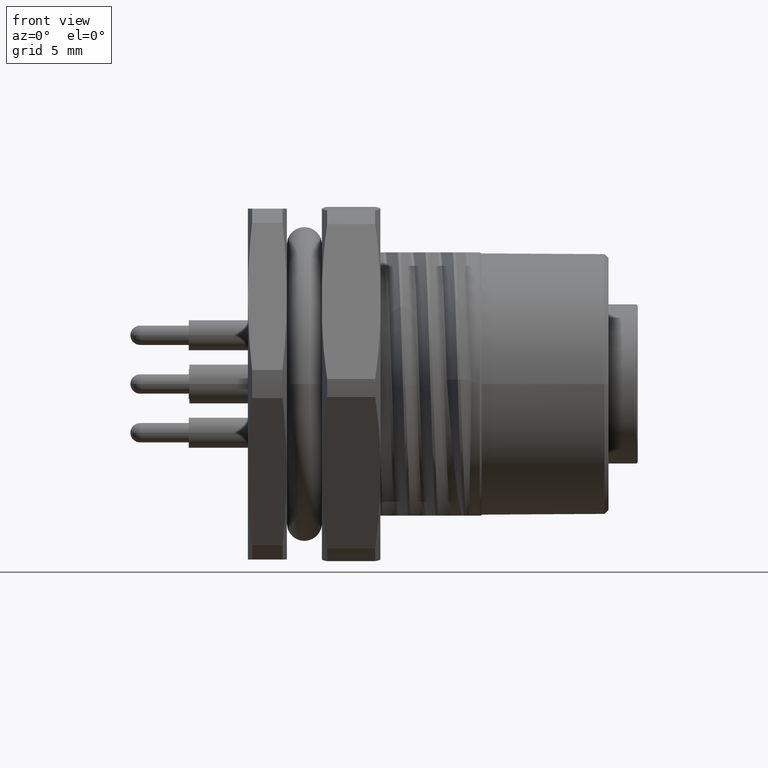
[diagram: clean part render]
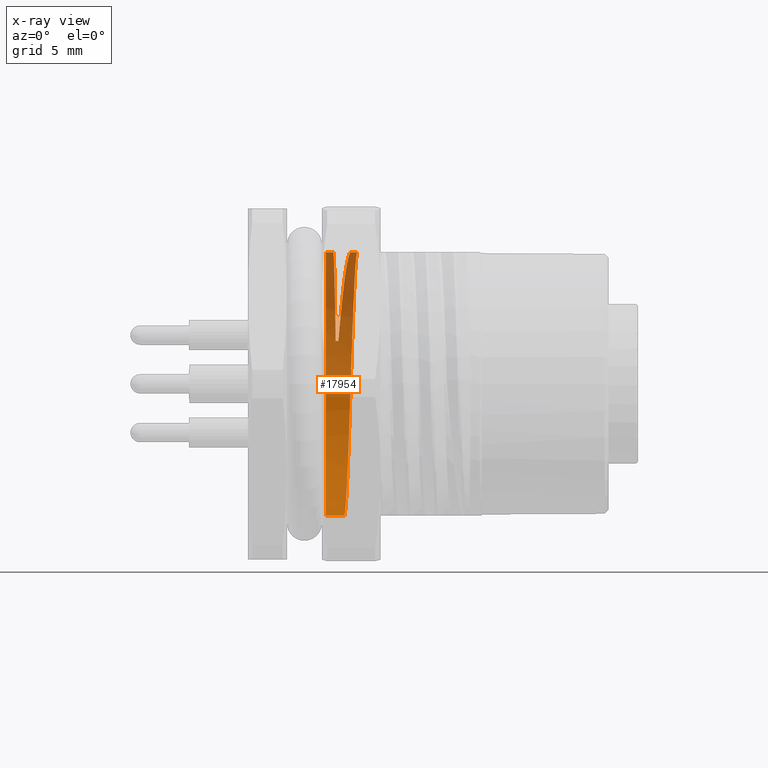
[diagram: x-ray — body ghosted, one internal face saturated and labeled with its STEP entity id]
A machine part, front view, then the same camera in x-ray: the body is ghosted and one INTERNAL B-rep face — a face not visible from any outside direction — is saturated and labeled: STEP entity #17954.
In plain terms, the highlighted cylindrical surface (partial cylindrical patch) has radius 6.82 mm, axis along (1, 0, 0).
Its self-contained STEP definition (entity closure, byte-faithful):
#1657=DIRECTION('',(9.999999637706E-1,-4.323189271071E-5,-2.656872474351E-4));
#1658=VECTOR('',#1657,1.542616802964E-2);
#1659=CARTESIAN_POINT('',(7.874015748036E-2,3.837118638635E-2,
2.657480314961E-1));
#1660=LINE('',#1659,#1658);
#1661=DIRECTION('',(9.999999606721E-1,7.051710435468E-5,2.714464876743E-4));
#1662=VECTOR('',#1661,1.366772633188E-2);
#1663=CARTESIAN_POINT('',(1.279060387132E-1,3.837017859414E-2,
2.657439028105E-1));
#1664=LINE('',#1663,#1662);
#5572=DIRECTION('',(9.999999999283E-1,-3.021139811967E-6,1.158478603870E-5));
#5573=VECTOR('',#5572,3.761322451800E-2);
#5574=CARTESIAN_POINT('',(7.874015748036E-2,3.837118638635E-2,
-2.657480314961E-1));
#5575=LINE('',#5574,#5573);
#5576=CARTESIAN_POINT('',(1.163533819957E-1,3.837107275154E-2,
-2.657475957549E-1));
#5577=CARTESIAN_POINT('',(1.168282373240E-1,5.242425497155E-2,
-2.637184658636E-1));
#5578=CARTESIAN_POINT('',(1.177482278103E-1,8.020706339046E-2,
-2.574269552623E-1));
#5579=CARTESIAN_POINT('',(1.191554925404E-1,1.198639421008E-1,
-2.415243350252E-1));
#5580=CARTESIAN_POINT('',(1.205550120233E-1,1.565009471695E-1,
-2.195649439068E-1));
#5581=CARTESIAN_POINT('',(1.219566942521E-1,1.892149304586E-1,
-1.920914655543E-1));
#5582=CARTESIAN_POINT('',(1.233577737465E-1,2.171775477155E-1,
-1.597975813141E-1));
#5583=CARTESIAN_POINT('',(1.247590208249E-1,2.396895075858E-1,
-1.234922063441E-1));
#5584=CARTESIAN_POINT('',(1.261602213111E-1,2.561849046685E-1,
-8.408726020254E-2));
#5585=CARTESIAN_POINT('',(1.275614345102E-1,2.662499485109E-1,
-4.257161181057E-2));
#5586=CARTESIAN_POINT('',(1.289626438504E-1,2.696319261525E-1,
1.259239553503E-5));
#5587=CARTESIAN_POINT('',(1.303638546905E-1,2.662459671693E-1,
4.259648740785E-2));
#5588=CARTESIAN_POINT('',(1.317650633894E-1,2.561770625117E-1,
8.411117453900E-2));
#5589=CARTESIAN_POINT('',(1.331662797610E-1,2.396779248898E-1,
1.235146385460E-1));
#5590=CARTESIAN_POINT('',(1.345674695314E-1,2.171627733921E-1,
1.598177444583E-1));
#5591=CARTESIAN_POINT('',(1.359687562992E-1,1.891965064006E-1,
1.921094685041E-1));
#5592=CARTESIAN_POINT('',(1.373696900755E-1,1.564818028464E-1,
2.195787620943E-1));
#5593=CARTESIAN_POINT('',(1.387719087851E-1,1.198380987937E-1,
2.415371869546E-1));
#5594=CARTESIAN_POINT('',(1.401694502694E-1,8.018779744411E-2,
2.574320837581E-1));
#5595=CARTESIAN_POINT('',(1.411124862483E-1,5.241713760038E-2,
2.637195207049E-1));
#5596=CARTESIAN_POINT('',(1.415737645075E-1,3.837114240263E-2,
2.657476128668E-1));
#5607=CARTESIAN_POINT('',(7.874015748036E-2,0.E0,0.E0));
#5608=DIRECTION('',(1.E0,0.E0,0.E0));
#5609=DIRECTION('',(0.E0,1.429073510576E-1,-9.897360703812E-1));
#5610=AXIS2_PLACEMENT_3D('',#5607,#5608,#5609);
#5619=CARTESIAN_POINT('',(1.041092588933E-1,2.540746341636E-1,
8.683224250743E-2));
#5620=CARTESIAN_POINT('',(1.052271679075E-1,2.495739740371E-1,
1.000013673705E-1));
#5621=CARTESIAN_POINT('',(1.074629990545E-1,2.385041852604E-1,
1.256699234857E-1));
#5622=CARTESIAN_POINT('',(1.108474725194E-1,2.161791271388E-1,
1.610883128768E-1));
#5623=CARTESIAN_POINT('',(1.142617568615E-1,1.883217032145E-1,
1.929489676302E-1));
#5624=CARTESIAN_POINT('',(1.176497532698E-1,1.557134453141E-1,
2.200982369654E-1));
#5625=CARTESIAN_POINT('',(1.210722676498E-1,1.194210914169E-1,
2.417197270713E-1));
#5626=CARTESIAN_POINT('',(1.244837567935E-1,8.000380664045E-2,
2.574795840316E-1));
#5627=CARTESIAN_POINT('',(1.267631684176E-1,5.236531476573E-2,
2.637231541505E-1));
#5628=CARTESIAN_POINT('',(1.279060387132E-1,3.837017859414E-2,
2.657439028105E-1));
#5634=DIRECTION('',(9.999999999889E-1,-1.986271727394E-6,4.277633553784E-6));
#5635=VECTOR('',#5634,5.549122060832E-3);
#5636=CARTESIAN_POINT('',(9.856013683252E-2,2.540746451856E-1,
8.683221877031E-2));
#5637=LINE('',#5636,#5635);
#5655=CARTESIAN_POINT('',(9.416632495112E-2,3.837051948391E-2,
2.657439329600E-1));
#5656=CARTESIAN_POINT('',(9.437808098288E-2,5.231704923360E-2,
2.637302025498E-1));
#5657=CARTESIAN_POINT('',(9.479761724669E-2,7.986806605967E-2,
2.575135047855E-1));
#5658=CARTESIAN_POINT('',(9.542084246826E-2,1.191639064447E-1,
2.418402010398E-1));
#5659=CARTESIAN_POINT('',(9.607162368857E-2,1.554387699855E-1,
2.202923125035E-1));
#5660=CARTESIAN_POINT('',(9.667604586566E-2,1.880825551307E-1,
1.931794588877E-1));
#5661=CARTESIAN_POINT('',(9.731376775083E-2,2.159761943064E-1,
1.613701490748E-1));
#5662=CARTESIAN_POINT('',(9.795345402038E-2,2.384566934533E-1,
1.257834771398E-1));
#5663=CARTESIAN_POINT('',(9.835740382216E-2,2.495604085331E-1,
1.000410691318E-1));
#5664=CARTESIAN_POINT('',(9.856013683252E-2,2.540746451856E-1,
8.683221877031E-2));
#9959=CARTESIAN_POINT('',(7.874015748036E-2,3.837118638635E-2,
-2.657480314961E-1));
#9960=CARTESIAN_POINT('',(7.874015748036E-2,3.837118638635E-2,
2.657480314961E-1));
#9961=VERTEX_POINT('',#9959);
#9962=VERTEX_POINT('',#9960);
#9963=CARTESIAN_POINT('',(1.163533819957E-1,3.837107275154E-2,
-2.657475957549E-1));
#9964=VERTEX_POINT('',#9963);
#9965=VERTEX_POINT('',#5596);
#9966=CARTESIAN_POINT('',(1.279060387132E-1,3.837017859414E-2,
2.657439028105E-1));
#9967=VERTEX_POINT('',#9966);
#9968=VERTEX_POINT('',#5619);
#9969=CARTESIAN_POINT('',(9.856013683252E-2,2.540746451856E-1,
8.683221877031E-2));
#9970=VERTEX_POINT('',#9969);
#9971=VERTEX_POINT('',#5655);
#17935=CARTESIAN_POINT('',(7.251967747545E-2,0.E0,0.E0));
#17936=DIRECTION('',(1.E0,0.E0,0.E0));
#17937=DIRECTION('',(0.E0,-1.E0,0.E0));
#17938=AXIS2_PLACEMENT_3D('',#17935,#17936,#17937);
#17939=CYLINDRICAL_SURFACE('',#17938,2.685039370079E-1);
#17941=ORIENTED_EDGE('',*,*,#17940,.F.);
#17942=ORIENTED_EDGE('',*,*,#12135,.T.);
#17943=ORIENTED_EDGE('',*,*,#17929,.T.);
#17944=ORIENTED_EDGE('',*,*,#12825,.F.);
#17946=ORIENTED_EDGE('',*,*,#17945,.F.);
#17948=ORIENTED_EDGE('',*,*,#17947,.F.);
#17950=ORIENTED_EDGE('',*,*,#17949,.F.);
#17951=ORIENTED_EDGE('',*,*,#12817,.F.);
#17952=EDGE_LOOP('',(#17941,#17942,#17943,#17944,#17946,#17948,#17950,#17951));
#17953=FACE_OUTER_BOUND('',#17952,.F.);
#17954=ADVANCED_FACE('',(#17953),#17939,.T.);
#5597=B_SPLINE_CURVE_WITH_KNOTS('',3,(#5576,#5577,#5578,#5579,#5580,#5581,#5582,
#5583,#5584,#5585,#5586,#5587,#5588,#5589,#5590,#5591,#5592,#5593,#5594,#5595,
#5596),.UNSPECIFIED.,.F.,.F.,(4,1,1,1,1,1,1,1,1,1,1,1,1,1,1,1,1,1,4),(0.E0,
5.555555555556E-2,1.111111111111E-1,1.666666666667E-1,2.222222222222E-1,
2.777777777778E-1,3.333333333333E-1,3.888888888889E-1,4.444444444444E-1,5.E-1,
5.555555555556E-1,6.111111111111E-1,6.666666666667E-1,7.222222222222E-1,
7.777777777778E-1,8.333333333333E-1,8.888888888889E-1,9.444444444444E-1,1.E0),
.UNSPECIFIED.);
#5611=CIRCLE('',#5610,2.685039370079E-1);
#5629=B_SPLINE_CURVE_WITH_KNOTS('',3,(#5619,#5620,#5621,#5622,#5623,#5624,#5625,
#5626,#5627,#5628),.UNSPECIFIED.,.F.,.F.,(4,1,1,1,1,1,1,4),(0.E0,
1.428571428571E-1,2.857142857143E-1,4.285714285714E-1,5.714285714286E-1,
7.142857142857E-1,8.571428571429E-1,1.E0),.UNSPECIFIED.);
#5665=B_SPLINE_CURVE_WITH_KNOTS('',3,(#5655,#5656,#5657,#5658,#5659,#5660,#5661,
#5662,#5663,#5664),.UNSPECIFIED.,.F.,.F.,(4,1,1,1,1,1,1,4),(0.E0,
1.428571428571E-1,2.857142857143E-1,4.285714285714E-1,5.714285714286E-1,
7.142857142857E-1,8.571428571429E-1,1.E0),.UNSPECIFIED.);
#12135=EDGE_CURVE('',#9961,#9964,#5575,.T.);
#12817=EDGE_CURVE('',#9962,#9971,#1660,.T.);
#12825=EDGE_CURVE('',#9967,#9965,#1664,.T.);
#17929=EDGE_CURVE('',#9964,#9965,#5597,.T.);
#17940=EDGE_CURVE('',#9961,#9962,#5611,.T.);
#17945=EDGE_CURVE('',#9968,#9967,#5629,.T.);
#17947=EDGE_CURVE('',#9970,#9968,#5637,.T.);
#17949=EDGE_CURVE('',#9971,#9970,#5665,.T.);